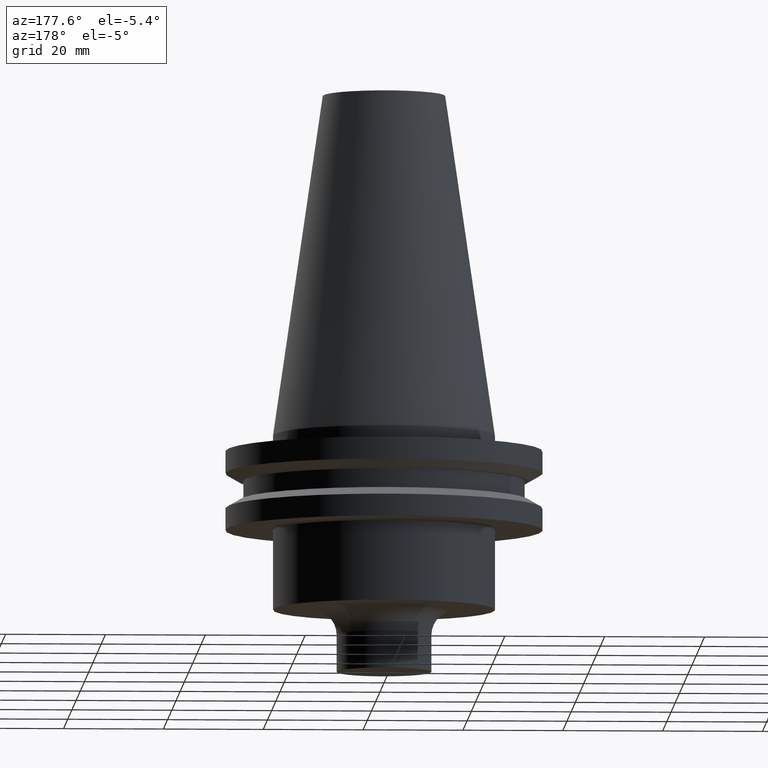
[diagram: clean part render]
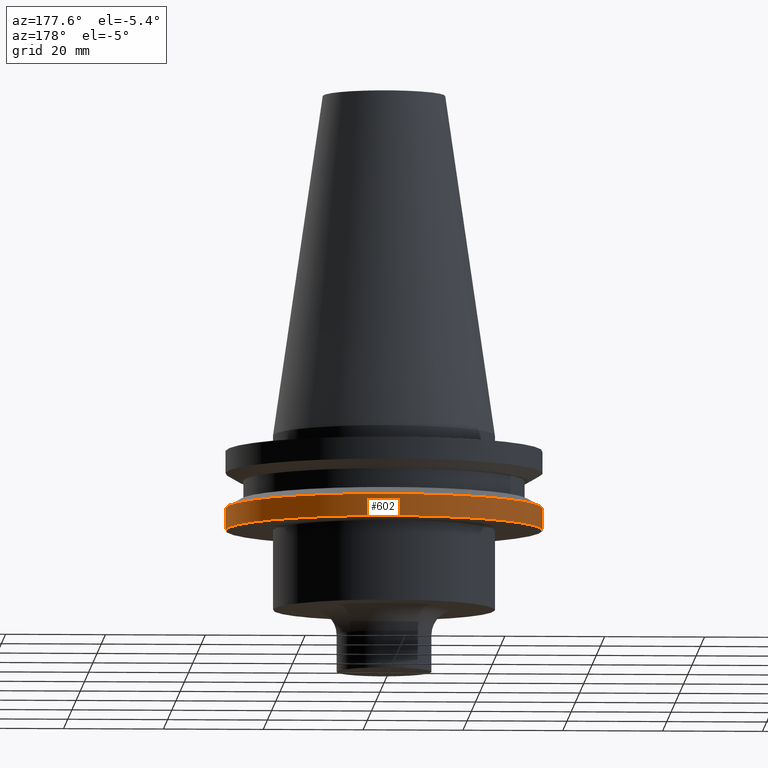
[diagram: same view with one face highlighted and labeled with its STEP entity id]
A machine part, auxiliary view. The second image highlights one B-rep face of the part: STEP entity #602.
In plain terms, the highlighted cylindrical surface (partial cylindrical patch) has radius 31.75 mm, axis along (-0, -0, 1).
Its self-contained STEP definition (entity closure, byte-faithful):
#6 = AXIS2_PLACEMENT_3D ( 'NONE', #674, #201, #374 ) ;
#40 = EDGE_LOOP ( 'NONE', ( #410, #323, #509, #571 ) ) ;
#54 = EDGE_CURVE ( 'NONE', #164, #257, #654, .T. ) ;
#58 = DIRECTION ( 'NONE',  ( -0.000000000000000000, -0.000000000000000000, 1.000000000000000000 ) ) ;
#69 = CARTESIAN_POINT ( 'NONE',  ( 31.74999999999999289, 0.000000000000000000, -19.04999999999999716 ) ) ;
#80 = EDGE_CURVE ( 'NONE', #574, #581, #116, .T. ) ;
#116 = LINE ( 'NONE', #210, #703 ) ;
#135 = CARTESIAN_POINT ( 'NONE',  ( -31.75000000000000000, 3.888253587292846476E-15, -14.65472339340266572 ) ) ;
#164 = VERTEX_POINT ( 'NONE', #677 ) ;
#176 = EDGE_CURVE ( 'NONE', #574, #164, #369, .T. ) ;
#177 = DIRECTION ( 'NONE',  ( 1.000000000000000000, 0.000000000000000000, 0.000000000000000000 ) ) ;
#179 = AXIS2_PLACEMENT_3D ( 'NONE', #506, #259, #450 ) ;
#180 = CARTESIAN_POINT ( 'NONE',  ( 31.75000000000000000, 0.000000000000000000, -14.65472339340266572 ) ) ;
#201 = DIRECTION ( 'NONE',  ( -0.000000000000000000, -0.000000000000000000, 1.000000000000000000 ) ) ;
#210 = CARTESIAN_POINT ( 'NONE',  ( 31.75000000000000000, 0.000000000000000000, 68.25000000000000000 ) ) ;
#236 = CYLINDRICAL_SURFACE ( 'NONE', #710, 31.75000000000000000 ) ;
#257 = VERTEX_POINT ( 'NONE', #135 ) ;
#259 = DIRECTION ( 'NONE',  ( -0.000000000000000000, -0.000000000000000000, 1.000000000000000000 ) ) ;
#323 = ORIENTED_EDGE ( 'NONE', *, *, #54, .T. ) ;
#333 = VECTOR ( 'NONE', #701, 1000.000000000000000 ) ;
#355 = CIRCLE ( 'NONE', #179, 31.75000000000000000 ) ;
#369 = CIRCLE ( 'NONE', #6, 31.74999999999999289 ) ;
#374 = DIRECTION ( 'NONE',  ( 1.000000000000000000, 0.000000000000000000, 0.000000000000000000 ) ) ;
#410 = ORIENTED_EDGE ( 'NONE', *, *, #176, .T. ) ;
#450 = DIRECTION ( 'NONE',  ( 1.000000000000000000, 0.000000000000000000, 0.000000000000000000 ) ) ;
#485 = DIRECTION ( 'NONE',  ( -0.000000000000000000, -0.000000000000000000, 1.000000000000000000 ) ) ;
#506 = CARTESIAN_POINT ( 'NONE',  ( 0.000000000000000000, 0.000000000000000000, -14.65472339340266572 ) ) ;
#509 = ORIENTED_EDGE ( 'NONE', *, *, #676, .F. ) ;
#528 = CARTESIAN_POINT ( 'NONE',  ( -31.75000000000000000, 3.888253587292846476E-15, 68.25000000000000000 ) ) ;
#571 = ORIENTED_EDGE ( 'NONE', *, *, #80, .F. ) ;
#574 = VERTEX_POINT ( 'NONE', #69 ) ;
#581 = VERTEX_POINT ( 'NONE', #180 ) ;
#602 = ADVANCED_FACE ( 'NONE', ( #717 ), #236, .T. ) ;
#654 = LINE ( 'NONE', #528, #333 ) ;
#662 = CARTESIAN_POINT ( 'NONE',  ( 0.000000000000000000, 0.000000000000000000, 68.25000000000000000 ) ) ;
#674 = CARTESIAN_POINT ( 'NONE',  ( 0.000000000000000000, 0.000000000000000000, -19.04999999999999716 ) ) ;
#676 = EDGE_CURVE ( 'NONE', #581, #257, #355, .T. ) ;
#677 = CARTESIAN_POINT ( 'NONE',  ( -31.74999999999999289, 3.888253587292845687E-15, -19.04999999999999716 ) ) ;
#701 = DIRECTION ( 'NONE',  ( -0.000000000000000000, -0.000000000000000000, 1.000000000000000000 ) ) ;
#703 = VECTOR ( 'NONE', #58, 1000.000000000000000 ) ;
#710 = AXIS2_PLACEMENT_3D ( 'NONE', #662, #485, #177 ) ;
#717 = FACE_OUTER_BOUND ( 'NONE', #40, .T. ) ;